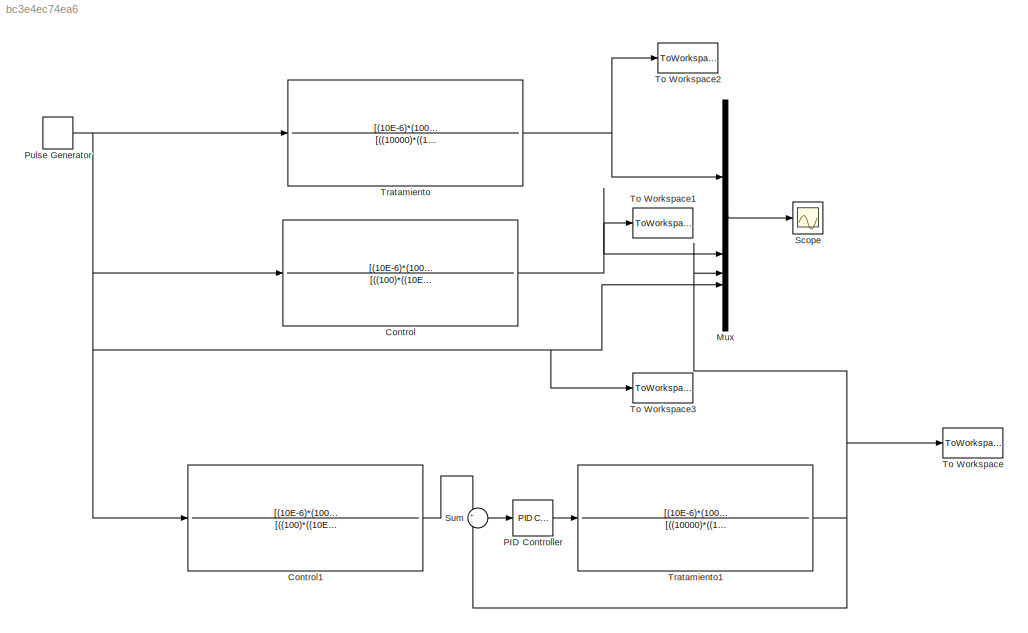
MODEL slx_bc3e4ec74ea6
KIND model
CONFIG AbsTol = auto
CONFIG EnableMultiTasking = off
CONFIG FixedStep = auto
CONFIG MaxStep = 1e-3
CONFIG MinStep = auto
CONFIG RelTol = 1e-3
CONFIG SampleTimeConstraint = Unconstrained
CONFIG SolverName = ode23t
CONFIG StartTime = 0.0
CONFIG StopTime = 10.0
BLOCK [TransferFcn] Control
  Denominator = [((100)*((10E-6)+(100E-6))),1]
  Numerator = [(10E-6)*(100),0.75]
BLOCK [TransferFcn] Control1
  Denominator = [((100)*((10E-6)+(100E-6))),1]
  Numerator = [(10E-6)*(100),0.75]
BLOCK [Mux] Mux
  DisplayOption = bar
BLOCK [Reference] PID Controller  REF=slpidlib/PID Controller
  LibrarySourceBlock = simulink/Continuous/PID Controller
  SourceBlock = slpidlib/PID Controller
  SourceType = PID 1dof
BLOCK [DiscretePulseGenerator] Pulse Generator
  Period = 10
  PhaseDelay = 1
  PulseType = Time based
  PulseWidth = 10
BLOCK [Scope] Scope
  ActiveDisplayYMaximum = 1.0648777644986982
  ActiveDisplayYMinimum = -0.023996227638687473
  ContainerLayout = {"WindowBounds":[1,1454,1594,674]}
  Floating = off
  GraphicalSettings = {"Style":{"BackgroundColor":[1,1,1],"AxesColor":[1,1,1],"LabelsColor":[0,0,0],"PreserveColors":false,"Visible":[true,true,true,true],"LineStyle":["-","-","-","-"],"LineWidth":[1.5,1.5,1.5,1.5],"BarWidth":[0.9,0.9,0.9,0.9],"LineColor":[[0.9294117647058824,0.6941176470588235,0.12549019607843137],"auto","auto","auto"],"LineFaceAlpha":[1,1,1,1],"LineEdgeAlpha":[1,1,1,1],"Marker":["none","none","none",...<+2250ch>
  MultipleDisplayCache = [{"MaxYLimMag":1.125,"MaxYLimReal":1.0648777644986982,"MinYLimMag":0,"MinYLimReal":-0.023996227638687473,"PlotAsMagnitudePhase":false,"ShowGrid":true,"ShowLegend":true,"Title":"%<SignalLabel>","YLabel":""}]
  NumInputPorts = 1
  ShowLegend = on
  Visible = on
  WasSavedAsWebScope = on
  WindowPosition = [1259.000000,25.000000,326.000000,659.000000,]
BLOCK [Sum] Sum
  Inputs = +-
BLOCK [ToWorkspace] To Workspace
  MaxDataPoints = inf
  SampleTime = -1
  VariableName = Fs1
BLOCK [ToWorkspace] To Workspace1
  MaxDataPoints = inf
  SampleTime = -1
  VariableName = Fs2
BLOCK [ToWorkspace] To Workspace2
  MaxDataPoints = inf
  SampleTime = -1
  VariableName = Fs3
BLOCK [ToWorkspace] To Workspace3
  MaxDataPoints = inf
  SampleTime = -1
  VariableName = F
BLOCK [TransferFcn] Tratamiento
  Denominator = [((10000)*((10E-6)+(100E-6))),1]
  Numerator = [(10E-6)*(10000),0.75]
BLOCK [TransferFcn] Tratamiento1
  Denominator = [((10000)*((10E-6)+(100E-6))),1]
  Numerator = [(10E-6)*(10000),0.75]
LINE Control1:1 -> Sum:1
NET Control:1 -> Mux:2, To Workspace1:1
LINE Mux:1 -> Scope:1
LINE PID Controller:1 -> Tratamiento1:1
NET Pulse Generator:1 -> Control1:1, Control:1, Mux:4, To Workspace3:1, Tratamiento:1
LINE Sum:1 -> PID Controller:1
NET Tratamiento1:1 -> Mux:3, Sum:2, To Workspace:1
NET Tratamiento:1 -> Mux:1, To Workspace2:1
note: NET lines group one-source signal fan-out (src -> all destinations, sorted); 1:1 wires keep LINE
